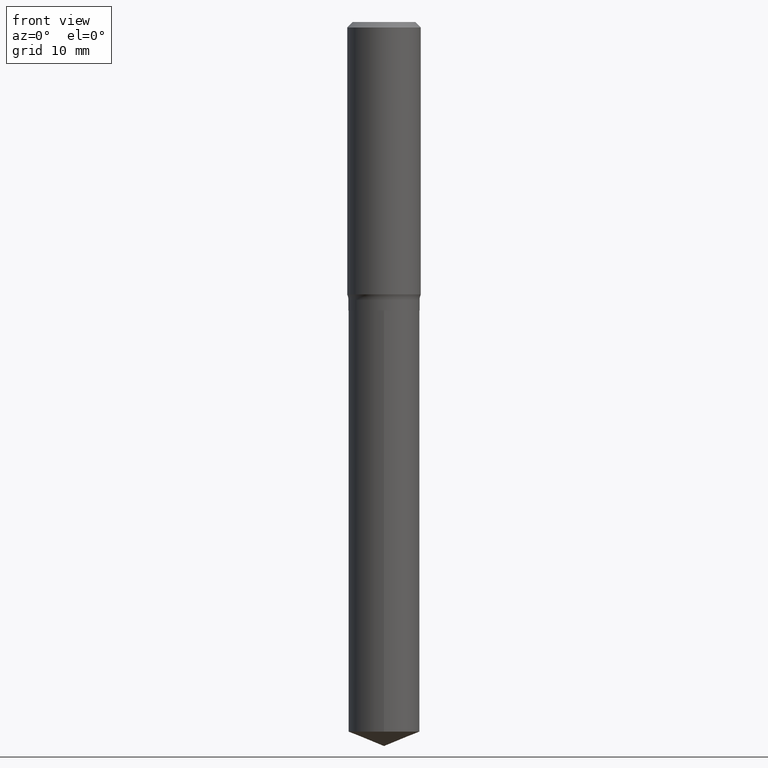
[diagram: clean part render]
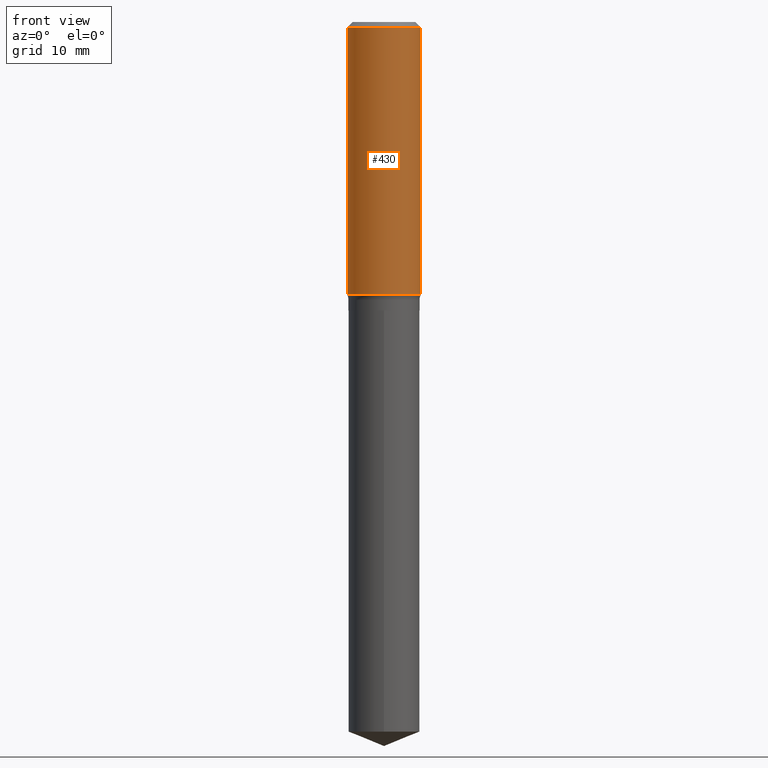
[diagram: same view with one face highlighted and labeled with its STEP entity id]
A machine part, front view. The second image highlights one B-rep face of the part: STEP entity #430.
In plain terms, the highlighted cylindrical surface (partial cylindrical patch) has radius 5.9995 mm, axis along (-0, 0, 1).
Its self-contained STEP definition (entity closure, byte-faithful):
#7 = AXIS2_PLACEMENT_3D ( 'NONE', #463, #416, #264 ) ;
#33 = CARTESIAN_POINT ( 'NONE',  ( 8.664295980313993487E-31, -1.237031838352134079E-16, -0.03543000000000021826 ) ) ;
#59 = VERTEX_POINT ( 'NONE', #353 ) ;
#63 = AXIS2_PLACEMENT_3D ( 'NONE', #33, #307, #229 ) ;
#65 = DIRECTION ( 'NONE',  ( -2.445468806185136877E-29, 3.491481338843145188E-15, 1.000000000000000000 ) ) ;
#74 = CARTESIAN_POINT ( 'NONE',  ( 0.2362000000000002153, -7.752825738090861332E-15, -1.748097544076709253 ) ) ;
#106 = VERTEX_POINT ( 'NONE', #470 ) ;
#128 = CIRCLE ( 'NONE', #7, 0.2362000000000002431 ) ;
#140 = CARTESIAN_POINT ( 'NONE',  ( 0.2362000000000001321, -1.649375784469497117E-15, 1.151752954443000789E-29 ) ) ;
#159 = DIRECTION ( 'NONE',  ( -2.445468806185136597E-29, 3.491481338843145583E-15, 1.000000000000000000 ) ) ;
#208 = ORIENTED_EDGE ( 'NONE', *, *, #478, .F. ) ;
#214 = DIRECTION ( 'NONE',  ( -2.445468806185136877E-29, 3.491481338843145188E-15, 1.000000000000000000 ) ) ;
#219 = EDGE_CURVE ( 'NONE', #392, #106, #483, .T. ) ;
#229 = DIRECTION ( 'NONE',  ( 1.000000000000000000, -6.982962677686266711E-15, 0.000000000000000000 ) ) ;
#242 = ORIENTED_EDGE ( 'NONE', *, *, #219, .T. ) ;
#259 = VECTOR ( 'NONE', #214, 39.37007874015748143 ) ;
#264 = DIRECTION ( 'NONE',  ( 1.000000000000000000, -6.982962677686265922E-15, 0.000000000000000000 ) ) ;
#272 = CARTESIAN_POINT ( 'NONE',  ( -0.2362000000000002153, -4.425148011756005257E-15, -1.748097544076709253 ) ) ;
#279 = CIRCLE ( 'NONE', #63, 0.2361999999999999933 ) ;
#281 = CARTESIAN_POINT ( 'NONE',  ( 0.000000000000000000, 0.000000000000000000, 0.000000000000000000 ) ) ;
#307 = DIRECTION ( 'NONE',  ( -2.445468806185136597E-29, 3.491481338843145583E-15, 1.000000000000000000 ) ) ;
#311 = LINE ( 'NONE', #467, #441 ) ;
#316 = DIRECTION ( 'NONE',  ( 1.000000000000000000, -6.982962677686266711E-15, 4.876176775795936353E-29 ) ) ;
#320 = AXIS2_PLACEMENT_3D ( 'NONE', #281, #159, #316 ) ;
#321 = VERTEX_POINT ( 'NONE', #272 ) ;
#353 = CARTESIAN_POINT ( 'NONE',  ( -0.2361999999999999933, -1.435274626862930827E-15, -0.03543000000000021826 ) ) ;
#362 = EDGE_CURVE ( 'NONE', #321, #392, #128, .T. ) ;
#388 = EDGE_CURVE ( 'NONE', #59, #106, #279, .T. ) ;
#392 = VERTEX_POINT ( 'NONE', #74 ) ;
#414 = ORIENTED_EDGE ( 'NONE', *, *, #388, .F. ) ;
#416 = DIRECTION ( 'NONE',  ( -2.445468806185136597E-29, 3.491481338843145583E-15, 1.000000000000000000 ) ) ;
#430 = ADVANCED_FACE ( 'NONE', ( #458 ), #486, .T. ) ;
#436 = ORIENTED_EDGE ( 'NONE', *, *, #362, .T. ) ;
#441 = VECTOR ( 'NONE', #65, 39.37007874015748143 ) ;
#445 = EDGE_LOOP ( 'NONE', ( #208, #436, #242, #414 ) ) ;
#458 = FACE_OUTER_BOUND ( 'NONE', #445, .T. ) ;
#463 = CARTESIAN_POINT ( 'NONE',  ( 4.274918014208439573E-29, -6.103449953621363229E-15, -1.748097544076709253 ) ) ;
#467 = CARTESIAN_POINT ( 'NONE',  ( -0.2362000000000001321, 1.678301941865357577E-15, -1.161852468318209457E-29 ) ) ;
#470 = CARTESIAN_POINT ( 'NONE',  ( 0.2361999999999999933, -1.773078968304709514E-15, -0.03543000000000021826 ) ) ;
#478 = EDGE_CURVE ( 'NONE', #321, #59, #311, .T. ) ;
#483 = LINE ( 'NONE', #140, #259 ) ;
#486 = CYLINDRICAL_SURFACE ( 'NONE', #320, 0.2362000000000001321 ) ;